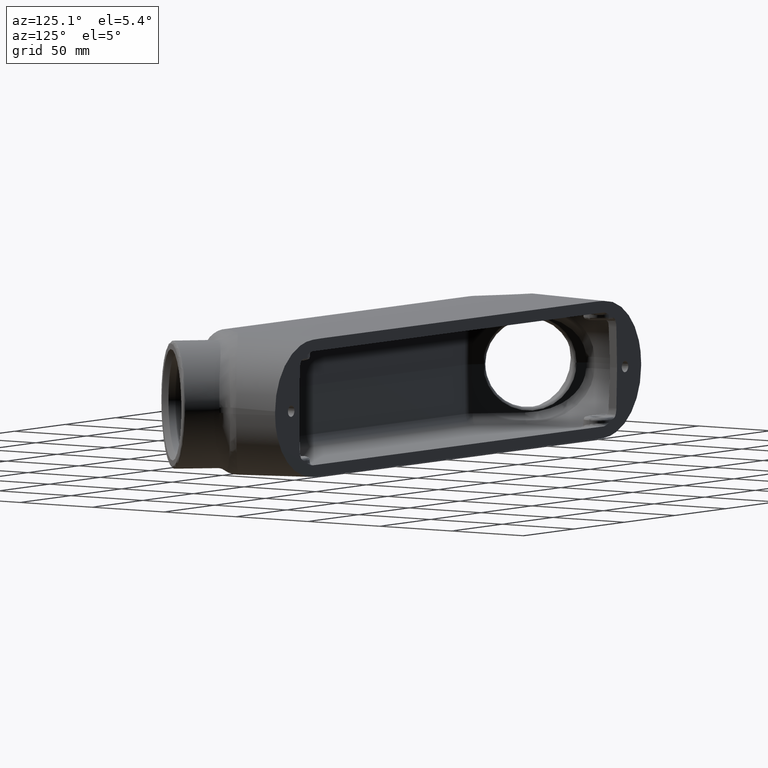
[diagram: clean part render]
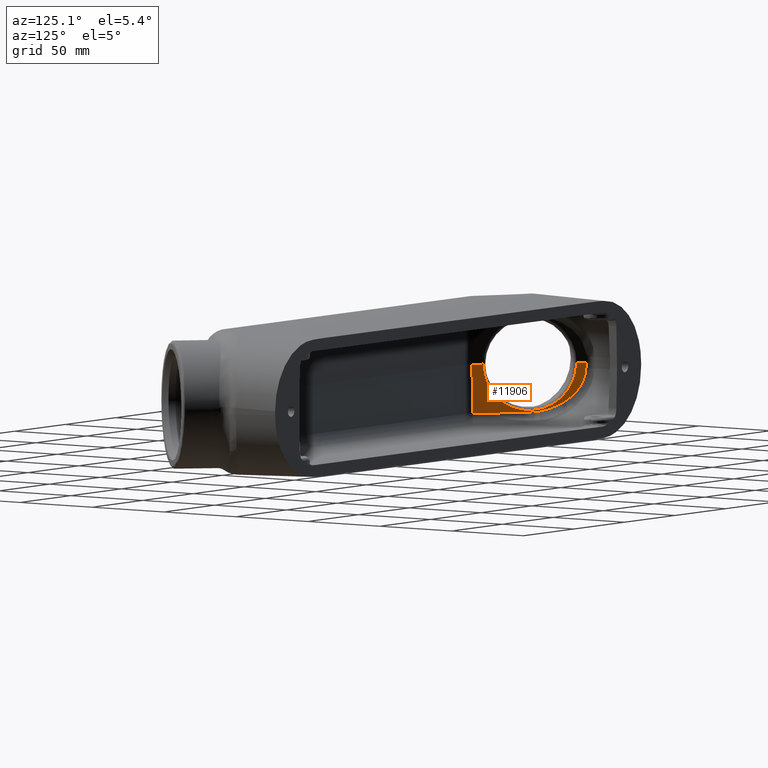
[diagram: same view with one face highlighted and labeled with its STEP entity id]
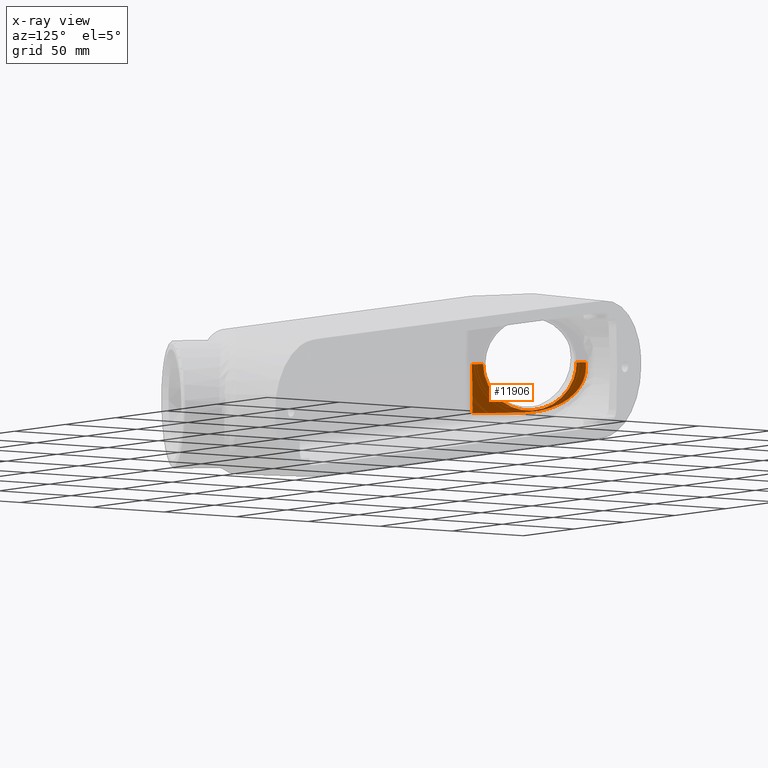
[diagram: x-ray of the same camera — body ghosted, the highlighted face saturated]
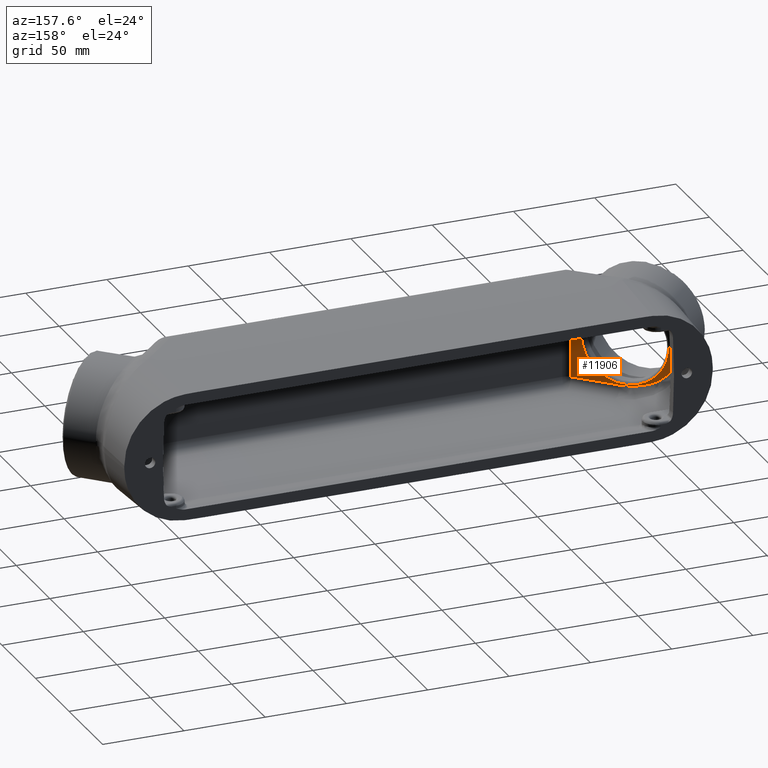
[diagram: same view with one face highlighted and labeled with its STEP entity id]
A machine part, auxiliary view. The second image highlights one B-rep face of the part: STEP entity #11906.
The next image is the same camera in x-ray: the body ghosted, the highlighted face saturated — about 0% of this face is hidden behind the body in this view.
A second angle (auxiliary view) of the same face is appended — the face is thin or edge-on in the first view.
In plain terms, the highlighted planar face has unit normal (0.7069, 0.7069, 0.0262).
Its self-contained STEP definition (entity closure, byte-faithful):
#946=PLANE('',#12710);
#1255=FACE_OUTER_BOUND('',#1993,.T.);
#1993=EDGE_LOOP('',(#8185,#8186,#8187,#8188,#8189,#8190,#8191));
#2772=ELLIPSE('',#12708,1.0623640456253,1.062);
#2774=ELLIPSE('',#12711,1.41469834416276,1.);
#2936=LINE('',#16957,#3826);
#2937=LINE('',#16959,#3827);
#2938=LINE('',#16961,#3828);
#2939=LINE('',#16965,#3829);
#2940=LINE('',#16966,#3830);
#3826=VECTOR('',#13747,0.393700787401575);
#3827=VECTOR('',#13748,0.393700787401575);
#3828=VECTOR('',#13749,0.393700787401575);
#3829=VECTOR('',#13752,0.393700787401575);
#3830=VECTOR('',#13753,0.393700787401575);
#5063=VERTEX_POINT('',#16839);
#5064=VERTEX_POINT('',#16871);
#5065=VERTEX_POINT('',#16956);
#5066=VERTEX_POINT('',#16958);
#5067=VERTEX_POINT('',#16960);
#5068=VERTEX_POINT('',#16962);
#5069=VERTEX_POINT('',#16964);
#6266=EDGE_CURVE('',#5063,#5064,#2772,.T.);
#6269=EDGE_CURVE('',#5065,#5063,#2936,.T.);
#6270=EDGE_CURVE('',#5066,#5065,#2937,.T.);
#6271=EDGE_CURVE('',#5067,#5066,#2938,.T.);
#6272=EDGE_CURVE('',#5068,#5067,#2774,.T.);
#6273=EDGE_CURVE('',#5069,#5068,#2939,.T.);
#6274=EDGE_CURVE('',#5064,#5069,#2940,.T.);
#8185=ORIENTED_EDGE('',*,*,#6266,.F.);
#8186=ORIENTED_EDGE('',*,*,#6269,.F.);
#8187=ORIENTED_EDGE('',*,*,#6270,.F.);
#8188=ORIENTED_EDGE('',*,*,#6271,.F.);
#8189=ORIENTED_EDGE('',*,*,#6272,.F.);
#8190=ORIENTED_EDGE('',*,*,#6273,.F.);
#8191=ORIENTED_EDGE('',*,*,#6274,.F.);
#11906=ADVANCED_FACE('',(#1255),#946,.T.);
#12708=AXIS2_PLACEMENT_3D('',#16872,#13741,#13742);
#12710=AXIS2_PLACEMENT_3D('',#16955,#13745,#13746);
#12711=AXIS2_PLACEMENT_3D('',#16963,#13750,#13751);
#13741=DIRECTION('center_axis',(0.706864473353021,0.706864473353021,0.0261769483078733));
#13742=DIRECTION('ref_axis',(0.0185098976592669,0.0185098976592669,-0.999657324975557));
#13745=DIRECTION('center_axis',(0.706864473353021,0.706864473353021,0.0261769483078733));
#13746=DIRECTION('ref_axis',(0.707106781186548,-0.707106781186547,-8.84624166497366E-17));
#13747=DIRECTION('',(-0.707106781186548,0.707106781186547,0.));
#13748=DIRECTION('',(-0.0108422096845633,-0.0261754096665653,0.999598566634598));
#13749=DIRECTION('',(0.707106781186548,-0.707106781186547,0.));
#13750=DIRECTION('center_axis',(-0.706864473353021,-0.706864473353021,-0.0261769483078733));
#13751=DIRECTION('ref_axis',(-0.706380272594282,0.70734900601567,-0.0261590171503317));
#13752=DIRECTION('',(0.0261754096665653,0.0108422096845633,-0.999598566634598));
#13753=DIRECTION('',(-0.707106781186548,0.707106781186547,0.));
#16839=CARTESIAN_POINT('',(-5.14891885994919,-1.21627774945754,-4.44038732746333E-18));
#16871=CARTESIAN_POINT('',(-6.65081202070501,0.285615411298282,-5.29145876207897E-18));
#16872=CARTESIAN_POINT('Origin',(-5.8998945222508,-0.465360251003332,0.0015706168984724));
#16955=CARTESIAN_POINT('Origin',(-6.97772345409782,0.553526545902179,1.59320386167979));
#16956=CARTESIAN_POINT('',(-4.96964482231236,-1.39555178709436,0.));
#16957=CARTESIAN_POINT('',(-5.06541080470336,-1.29978580470336,0.));
#16958=CARTESIAN_POINT('',(-4.9577104106082,-1.36673956849924,-1.10029423707697));
#16959=CARTESIAN_POINT('',(-4.97783802236618,-1.41533192178352,0.755372868466342));
#16960=CARTESIAN_POINT('',(-5.79883269757756,-0.525617281529884,-1.10029423707697));
#16961=CARTESIAN_POINT('',(-3.26378748955372,-3.06066248955372,-1.10029423707697));
#16962=CARTESIAN_POINT('',(-6.79849002255312,0.43797695547601,-0.126471185384841));
#16963=CARTESIAN_POINT('Origin',(-5.79883269757756,-0.562649766956265,-0.100294237076968));
#16964=CARTESIAN_POINT('',(-6.80180178709437,0.436605177687638,0.));
#16965=CARTESIAN_POINT('',(-6.80191820050791,0.436556957672904,0.00444564890484465));
#16966=CARTESIAN_POINT('',(-5.06541080470336,-1.29978580470336,0.));